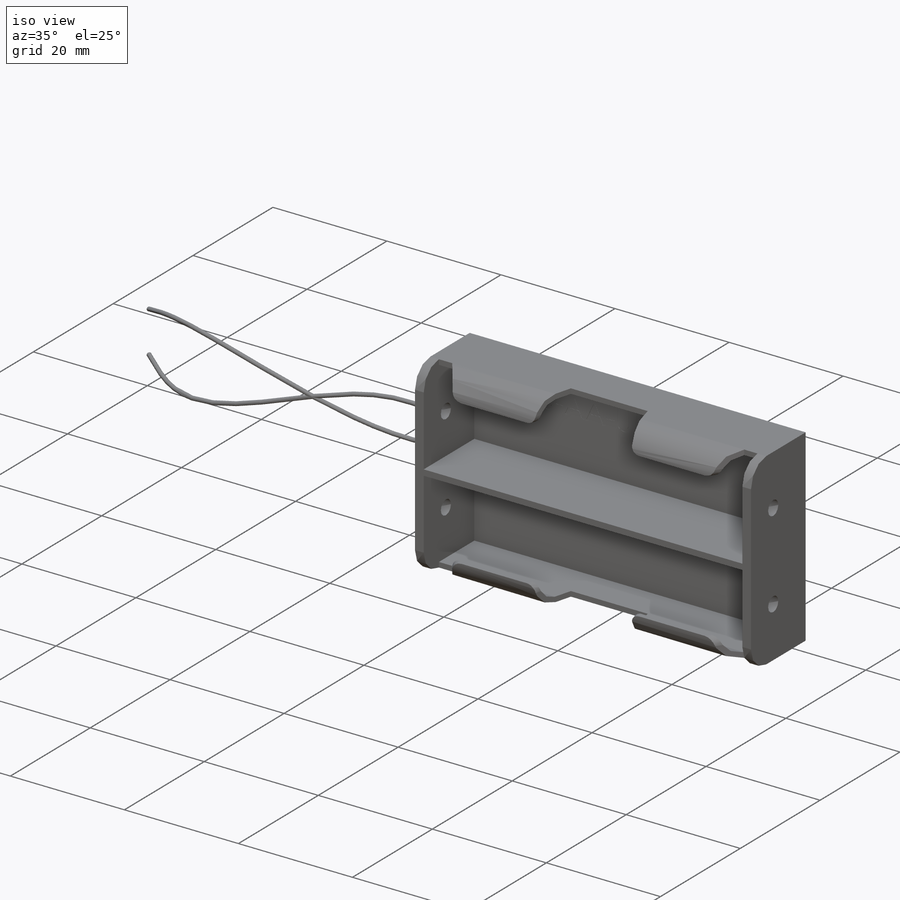
[diagram: iso view]
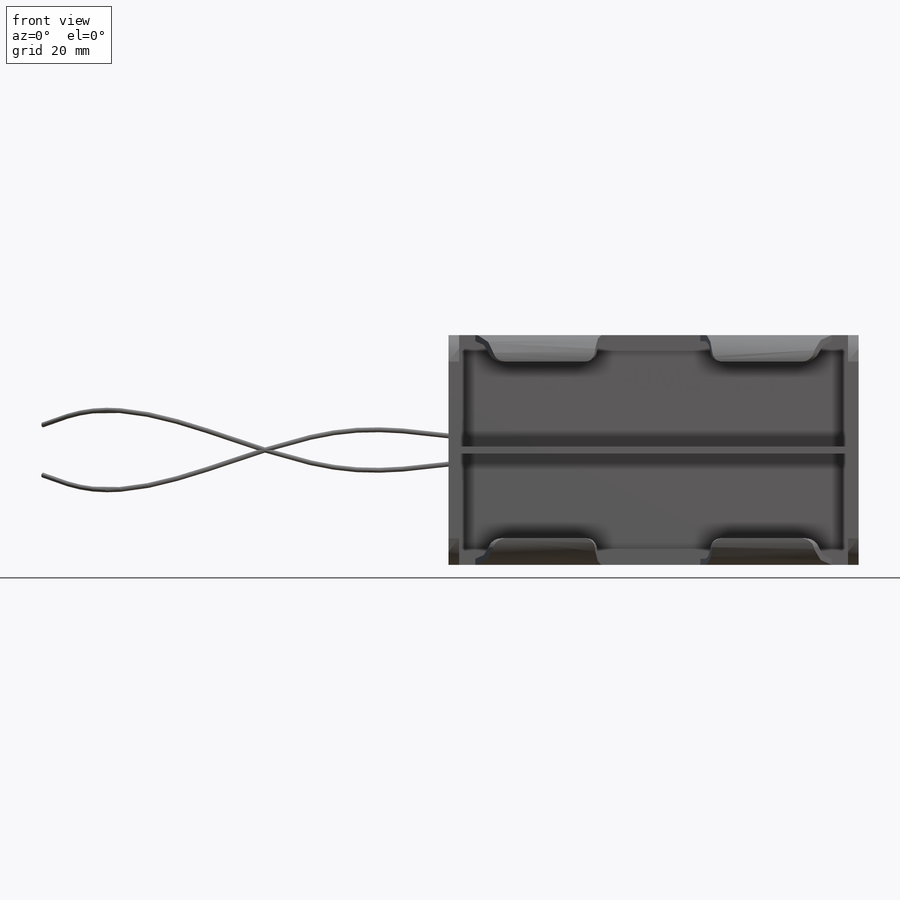
[diagram: front view]
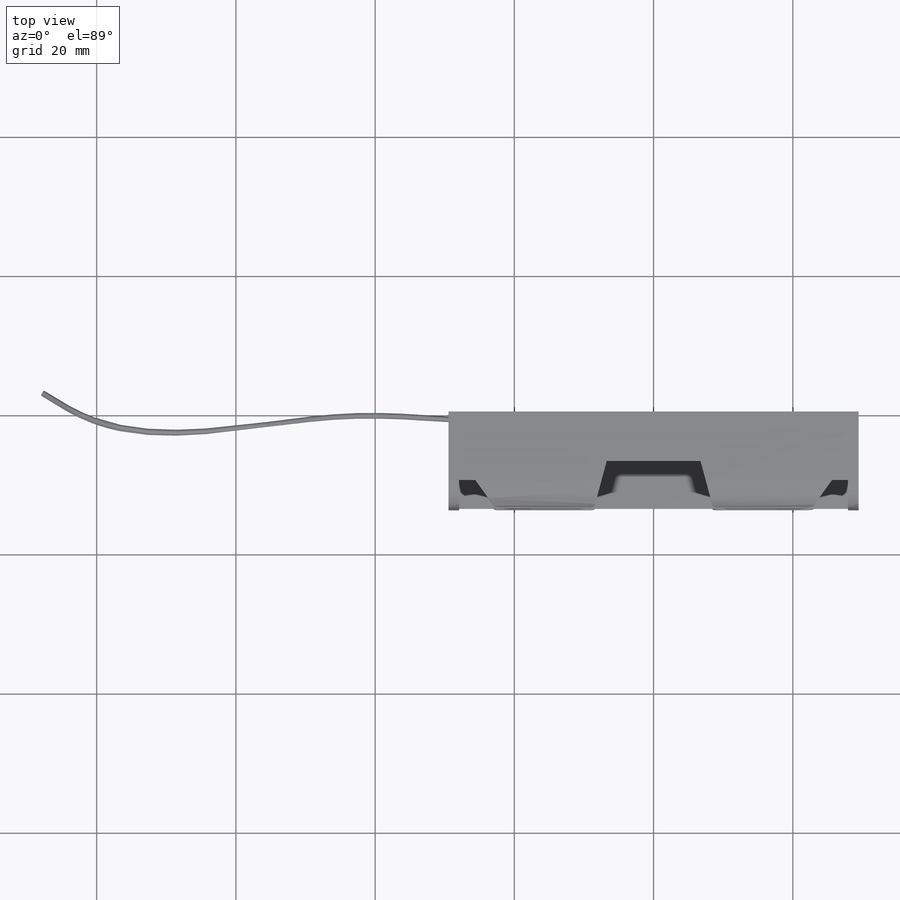
[diagram: top view]
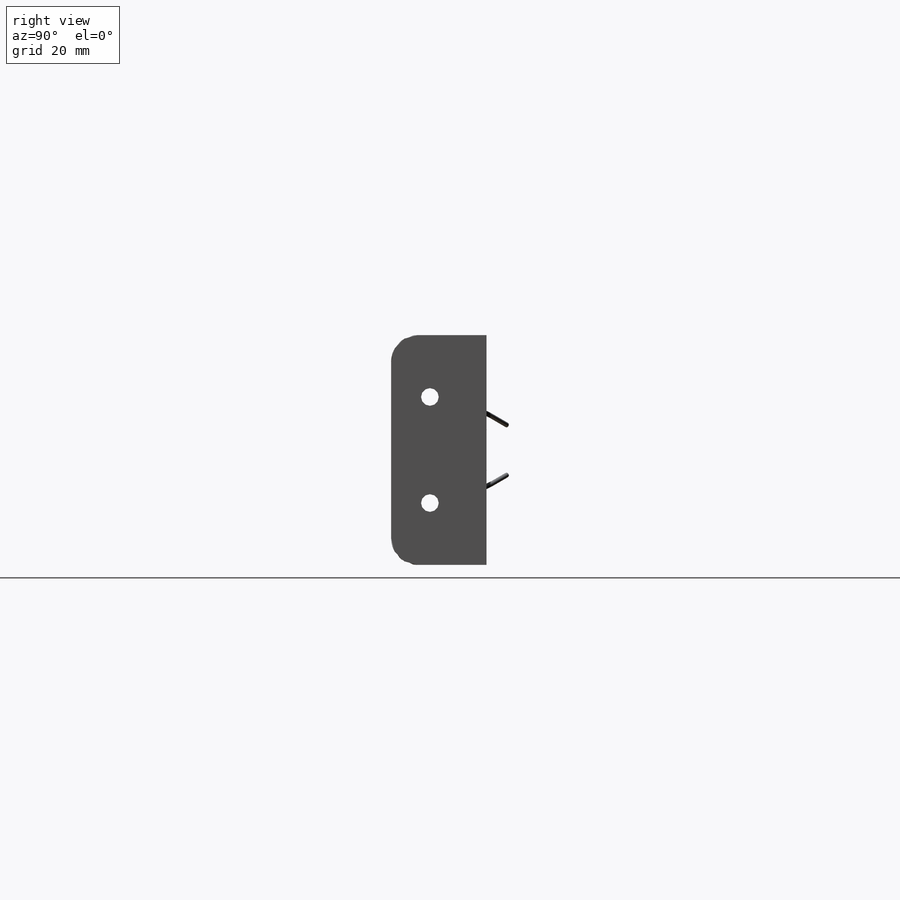
[diagram: right view]
SOLIDWORKS PART (.sldprt)
format: sldprt  version: not decoded by parser v0  size: 539,136 bytes
history: native  units: mm
features: sketch x7, plane x4, cut_extrude x4, fillet x2, mirror x2, material x1, extrude x1, sweep x1 (+8 scaffold rows collapsed)
feature tree (30):
  scaffold x8  (default folders/planes/origin — collapsed)
  material  "PTFE (general)"
  plane  "Plane1"
  plane  "Plane2"
  plane  "Plane3"
  sketch  "Sketch1"  dims[D1=58.928mm D2=33.02mm]
  extrude  "Extrude1"  Depth=13.6906mm
  fillet  "Fillet1"  Radius=3.81mm
  sketch  "Sketch2"  dims[D2=0.508mm D3=1.016mm D1=0.889mm]
  cut_extrude  "Cut-Extrude1"  Depth=55.88mm
  sketch  "Sketch3"  dims[D1=7.112mm D2=17.018mm D3=13.462mm D4=2.3368mm D5=5.08mm]
  cut_extrude  "Cut-Extrude2"  Depth=7.112mm
  fillet  "Fillet2"  Radius=1.27mm
  sketch  "Sketch4"  dims[c1.D1=~4.165727mm c1.D2=~4.165727mm c1.D3=2.54mm c2.D1=8.128mm c2.D2=8.89mm]
  cut_extrude  "Cut-Extrude3"  Depth=98.806mm
  mirror  "Mirror1"
  sketch  "Sketch5"
  cut_extrude  "Cut-Extrude4"  Depth=0.0254mm
  plane  "Plane4"  Offset=2.032mm
  sketch  "Sketch6"
  sketch  "3DSketch1"
  sweep  "Sweep4"
  mirror  "Mirror2"
decode coverage: 11 of 17 modeling features carry decoded parameters
note: ~ marks probable driven/reference dimensions
note: suppression state not decoded; provenance and decode notes live in map.json
